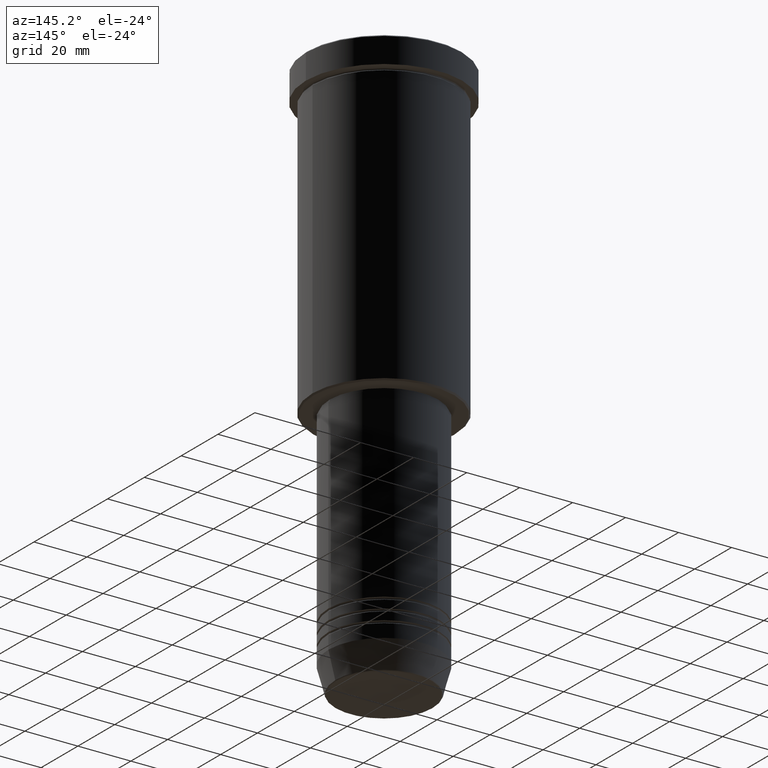
[diagram: clean part render]
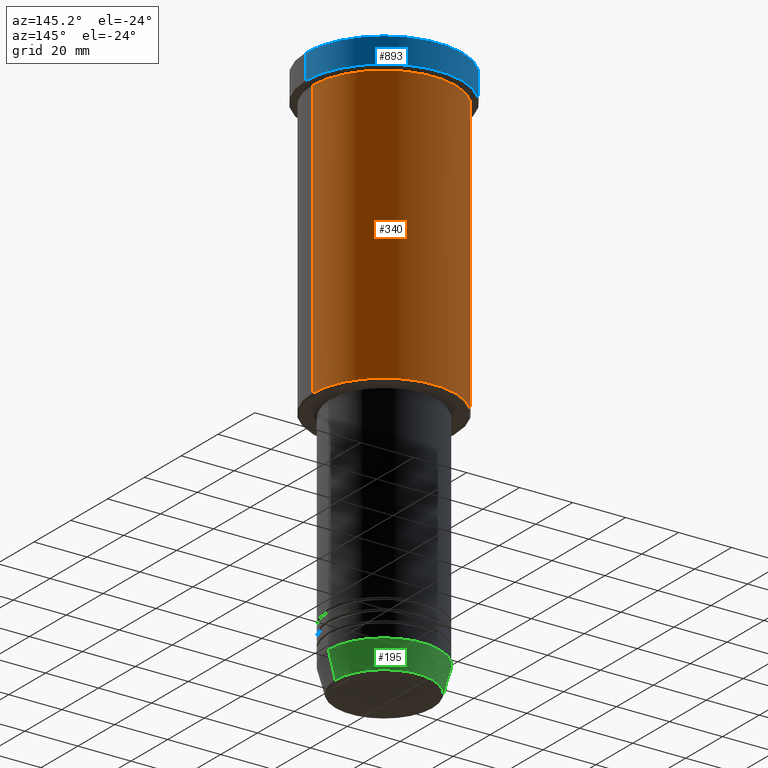
[diagram: same view with three faces highlighted in distinct colors, each labeled with its STEP entity id]
A machine part, auxiliary view with three faces highlighted in distinct colors.
Their STEP definitions:

[orange] entity #340 — the highlighted cylindrical surface (partial cylindrical patch) has radius 27 mm, axis along (-0, -0, 1).
#6 = FACE_OUTER_BOUND ( 'NONE', #934, .T. ) ;
#40 = DIRECTION ( 'NONE',  ( -0.000000000000000000, -0.000000000000000000, 1.000000000000000000 ) ) ;
#42 = EDGE_CURVE ( 'NONE', #282, #768, #87, .T. ) ;
#82 = ORIENTED_EDGE ( 'NONE', *, *, #42, .F. ) ;
#87 = LINE ( 'NONE', #808, #415 ) ;
#139 = DIRECTION ( 'NONE',  ( -1.000000000000000000, 0.000000000000000000, 0.000000000000000000 ) ) ;
#171 = AXIS2_PLACEMENT_3D ( 'NONE', #892, #1149, #262 ) ;
#262 = DIRECTION ( 'NONE',  ( 1.000000000000000000, 0.000000000000000000, 0.000000000000000000 ) ) ;
#282 = VERTEX_POINT ( 'NONE', #831 ) ;
#297 = CYLINDRICAL_SURFACE ( 'NONE', #334, 27.00000000000000355 ) ;
#318 = ORIENTED_EDGE ( 'NONE', *, *, #534, .T. ) ;
#334 = AXIS2_PLACEMENT_3D ( 'NONE', #661, #683, #946 ) ;
#340 = ADVANCED_FACE ( 'NONE', ( #6 ), #297, .T. ) ;
#341 = VERTEX_POINT ( 'NONE', #422 ) ;
#414 = VECTOR ( 'NONE', #40, 1000.000000000000000 ) ;
#415 = VECTOR ( 'NONE', #466, 1000.000000000000000 ) ;
#420 = CARTESIAN_POINT ( 'NONE',  ( 0.000000000000000000, 0.000000000000000000, -115.5000000000000284 ) ) ;
#422 = CARTESIAN_POINT ( 'NONE',  ( -27.00000000000000355, 3.306546357697854128E-15, -10.99999999999999289 ) ) ;
#466 = DIRECTION ( 'NONE',  ( -0.000000000000000000, -0.000000000000000000, 1.000000000000000000 ) ) ;
#498 = VERTEX_POINT ( 'NONE', #538 ) ;
#530 = DIRECTION ( 'NONE',  ( -0.000000000000000000, -0.000000000000000000, 1.000000000000000000 ) ) ;
#534 = EDGE_CURVE ( 'NONE', #282, #498, #891, .T. ) ;
#538 = CARTESIAN_POINT ( 'NONE',  ( -27.00000000000000355, 3.306546357697854128E-15, -115.5000000000000284 ) ) ;
#576 = CIRCLE ( 'NONE', #171, 27.00000000000000355 ) ;
#661 = CARTESIAN_POINT ( 'NONE',  ( 0.000000000000000000, 0.000000000000000000, 0.000000000000000000 ) ) ;
#683 = DIRECTION ( 'NONE',  ( -0.000000000000000000, -0.000000000000000000, 1.000000000000000000 ) ) ;
#690 = LINE ( 'NONE', #860, #414 ) ;
#768 = VERTEX_POINT ( 'NONE', #781 ) ;
#781 = CARTESIAN_POINT ( 'NONE',  ( 27.00000000000000355, 0.000000000000000000, -10.99999999999999289 ) ) ;
#808 = CARTESIAN_POINT ( 'NONE',  ( 27.00000000000000355, 0.000000000000000000, 0.000000000000000000 ) ) ;
#831 = CARTESIAN_POINT ( 'NONE',  ( 27.00000000000000355, 0.000000000000000000, -115.5000000000000284 ) ) ;
#834 = EDGE_CURVE ( 'NONE', #498, #341, #690, .T. ) ;
#860 = CARTESIAN_POINT ( 'NONE',  ( -27.00000000000000355, 3.306546357697854128E-15, 0.000000000000000000 ) ) ;
#891 = CIRCLE ( 'NONE', #1130, 27.00000000000000355 ) ;
#892 = CARTESIAN_POINT ( 'NONE',  ( 0.000000000000000000, 0.000000000000000000, -10.99999999999999289 ) ) ;
#934 = EDGE_LOOP ( 'NONE', ( #318, #1118, #1037, #82 ) ) ;
#946 = DIRECTION ( 'NONE',  ( 1.000000000000000000, 0.000000000000000000, 0.000000000000000000 ) ) ;
#1004 = EDGE_CURVE ( 'NONE', #768, #341, #576, .T. ) ;
#1037 = ORIENTED_EDGE ( 'NONE', *, *, #1004, .F. ) ;
#1118 = ORIENTED_EDGE ( 'NONE', *, *, #834, .T. ) ;
#1130 = AXIS2_PLACEMENT_3D ( 'NONE', #420, #530, #139 ) ;
#1149 = DIRECTION ( 'NONE',  ( -0.000000000000000000, -0.000000000000000000, 1.000000000000000000 ) ) ;

[blue] entity #893 — the highlighted cylindrical surface (partial cylindrical patch) has radius 29.5 mm, axis along (-0, -0, 1).
#11 = DIRECTION ( 'NONE',  ( 1.000000000000000000, 0.000000000000000000, 0.000000000000000000 ) ) ;
#73 = EDGE_CURVE ( 'NONE', #786, #219, #78, .T. ) ;
#78 = CIRCLE ( 'NONE', #377, 29.50000000000000000 ) ;
#169 = DIRECTION ( 'NONE',  ( 1.000000000000000000, 0.000000000000000000, 0.000000000000000000 ) ) ;
#219 = VERTEX_POINT ( 'NONE', #1067 ) ;
#229 = ORIENTED_EDGE ( 'NONE', *, *, #704, .T. ) ;
#272 = EDGE_CURVE ( 'NONE', #885, #219, #755, .T. ) ;
#358 = DIRECTION ( 'NONE',  ( 0.000000000000000000, 0.000000000000000000, -1.000000000000000000 ) ) ;
#368 = CYLINDRICAL_SURFACE ( 'NONE', #823, 29.50000000000000000 ) ;
#374 = DIRECTION ( 'NONE',  ( -0.000000000000000000, -0.000000000000000000, 1.000000000000000000 ) ) ;
#377 = AXIS2_PLACEMENT_3D ( 'NONE', #378, #358, #736 ) ;
#378 = CARTESIAN_POINT ( 'NONE',  ( 0.000000000000000000, 0.000000000000000000, -0.5000000000000281997 ) ) ;
#406 = ORIENTED_EDGE ( 'NONE', *, *, #881, .T. ) ;
#505 = CIRCLE ( 'NONE', #1150, 29.50000000000000000 ) ;
#551 = CARTESIAN_POINT ( 'NONE',  ( 29.50000000000000000, 0.000000000000000000, -9.999999999999992895 ) ) ;
#615 = VECTOR ( 'NONE', #1095, 1000.000000000000000 ) ;
#677 = VECTOR ( 'NONE', #374, 1000.000000000000000 ) ;
#692 = CARTESIAN_POINT ( 'NONE',  ( 0.000000000000000000, 0.000000000000000000, -9.999999999999992895 ) ) ;
#704 = EDGE_CURVE ( 'NONE', #885, #723, #505, .T. ) ;
#722 = DIRECTION ( 'NONE',  ( -0.000000000000000000, -0.000000000000000000, 1.000000000000000000 ) ) ;
#723 = VERTEX_POINT ( 'NONE', #1022 ) ;
#734 = FACE_OUTER_BOUND ( 'NONE', #1081, .T. ) ;
#736 = DIRECTION ( 'NONE',  ( 1.000000000000000000, 0.000000000000000000, 0.000000000000000000 ) ) ;
#755 = LINE ( 'NONE', #1101, #615 ) ;
#786 = VERTEX_POINT ( 'NONE', #1122 ) ;
#823 = AXIS2_PLACEMENT_3D ( 'NONE', #1064, #722, #169 ) ;
#881 = EDGE_CURVE ( 'NONE', #723, #786, #975, .T. ) ;
#885 = VERTEX_POINT ( 'NONE', #551 ) ;
#893 = ADVANCED_FACE ( 'NONE', ( #734 ), #368, .T. ) ;
#948 = ORIENTED_EDGE ( 'NONE', *, *, #73, .T. ) ;
#975 = LINE ( 'NONE', #1171, #677 ) ;
#1022 = CARTESIAN_POINT ( 'NONE',  ( -29.50000000000000000, 3.612708057484691604E-15, -9.999999999999992895 ) ) ;
#1064 = CARTESIAN_POINT ( 'NONE',  ( 0.000000000000000000, 0.000000000000000000, 0.000000000000000000 ) ) ;
#1067 = CARTESIAN_POINT ( 'NONE',  ( 29.50000000000000000, 0.000000000000000000, -0.5000000000000281997 ) ) ;
#1081 = EDGE_LOOP ( 'NONE', ( #229, #406, #948, #1089 ) ) ;
#1089 = ORIENTED_EDGE ( 'NONE', *, *, #272, .F. ) ;
#1095 = DIRECTION ( 'NONE',  ( -0.000000000000000000, -0.000000000000000000, 1.000000000000000000 ) ) ;
#1101 = CARTESIAN_POINT ( 'NONE',  ( 29.50000000000000000, 0.000000000000000000, 0.000000000000000000 ) ) ;
#1110 = DIRECTION ( 'NONE',  ( -0.000000000000000000, -0.000000000000000000, 1.000000000000000000 ) ) ;
#1122 = CARTESIAN_POINT ( 'NONE',  ( -29.50000000000000000, 3.612708057484691604E-15, -0.5000000000000281997 ) ) ;
#1150 = AXIS2_PLACEMENT_3D ( 'NONE', #692, #1110, #11 ) ;
#1171 = CARTESIAN_POINT ( 'NONE',  ( -29.50000000000000000, 3.612708057484691604E-15, 0.000000000000000000 ) ) ;

[green] entity #195 — the highlighted conical surface has half-angle 15 deg.
#48 = VERTEX_POINT ( 'NONE', #819 ) ;
#49 = DIRECTION ( 'NONE',  ( 1.000000000000000000, 0.000000000000000000, 0.000000000000000000 ) ) ;
#57 = CARTESIAN_POINT ( 'NONE',  ( 0.000000000000000000, 0.000000000000000000, -201.0000000000000000 ) ) ;
#75 = ORIENTED_EDGE ( 'NONE', *, *, #331, .T. ) ;
#102 = ORIENTED_EDGE ( 'NONE', *, *, #443, .T. ) ;
#112 = CIRCLE ( 'NONE', #412, 21.00000000000000000 ) ;
#154 = EDGE_LOOP ( 'NONE', ( #102, #75, #846, #600 ) ) ;
#190 = DIRECTION ( 'NONE',  ( -0.2588190451025211836, 3.169619151431770488E-17, 0.9659258262890680902 ) ) ;
#195 = ADVANCED_FACE ( 'NONE', ( #427 ), #791, .T. ) ;
#236 = DIRECTION ( 'NONE',  ( -0.000000000000000000, -0.000000000000000000, 1.000000000000000000 ) ) ;
#241 = CARTESIAN_POINT ( 'NONE',  ( 21.00000000000000000, 0.000000000000000000, -201.0000000000000000 ) ) ;
#316 = DIRECTION ( 'NONE',  ( -0.000000000000000000, -0.000000000000000000, 1.000000000000000000 ) ) ;
#320 = DIRECTION ( 'NONE',  ( -0.000000000000000000, -0.000000000000000000, 1.000000000000000000 ) ) ;
#330 = CARTESIAN_POINT ( 'NONE',  ( 18.41980749484383040, 0.000000000000000000, -210.6294095225512990 ) ) ;
#331 = EDGE_CURVE ( 'NONE', #574, #48, #650, .T. ) ;
#412 = AXIS2_PLACEMENT_3D ( 'NONE', #1046, #236, #49 ) ;
#427 = FACE_OUTER_BOUND ( 'NONE', #154, .T. ) ;
#440 = VERTEX_POINT ( 'NONE', #330 ) ;
#443 = EDGE_CURVE ( 'NONE', #440, #574, #1114, .T. ) ;
#574 = VERTEX_POINT ( 'NONE', #855 ) ;
#584 = EDGE_CURVE ( 'NONE', #627, #48, #112, .T. ) ;
#600 = ORIENTED_EDGE ( 'NONE', *, *, #848, .F. ) ;
#622 = DIRECTION ( 'NONE',  ( 0.2588190451025211836, 0.000000000000000000, 0.9659258262890680902 ) ) ;
#627 = VERTEX_POINT ( 'NONE', #241 ) ;
#640 = LINE ( 'NONE', #716, #836 ) ;
#650 = LINE ( 'NONE', #997, #773 ) ;
#700 = DIRECTION ( 'NONE',  ( 1.000000000000000000, 0.000000000000000000, 0.000000000000000000 ) ) ;
#716 = CARTESIAN_POINT ( 'NONE',  ( 21.00000000000000000, 0.000000000000000000, -201.0000000000000000 ) ) ;
#769 = AXIS2_PLACEMENT_3D ( 'NONE', #950, #316, #700 ) ;
#773 = VECTOR ( 'NONE', #190, 1000.000000000000114 ) ;
#791 = CONICAL_SURFACE ( 'NONE', #931, 21.00000000000000000, 0.2617993877991499074 ) ;
#819 = CARTESIAN_POINT ( 'NONE',  ( -21.00000000000000000, 2.571758278209441661E-15, -201.0000000000000000 ) ) ;
#836 = VECTOR ( 'NONE', #622, 1000.000000000000114 ) ;
#846 = ORIENTED_EDGE ( 'NONE', *, *, #584, .F. ) ;
#848 = EDGE_CURVE ( 'NONE', #440, #627, #640, .T. ) ;
#855 = CARTESIAN_POINT ( 'NONE',  ( -18.41980749484383040, 2.413767053578267064E-15, -210.6294095225512990 ) ) ;
#931 = AXIS2_PLACEMENT_3D ( 'NONE', #57, #320, #1040 ) ;
#950 = CARTESIAN_POINT ( 'NONE',  ( 0.000000000000000000, 0.000000000000000000, -210.6294095225512990 ) ) ;
#997 = CARTESIAN_POINT ( 'NONE',  ( -21.00000000000000000, 2.571758278209441661E-15, -201.0000000000000000 ) ) ;
#1040 = DIRECTION ( 'NONE',  ( 1.000000000000000000, 0.000000000000000000, 0.000000000000000000 ) ) ;
#1046 = CARTESIAN_POINT ( 'NONE',  ( 0.000000000000000000, 0.000000000000000000, -201.0000000000000000 ) ) ;
#1114 = CIRCLE ( 'NONE', #769, 18.41980749484383040 ) ;